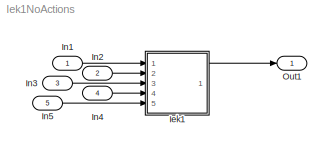
MODEL Iek1NoActions
KIND model
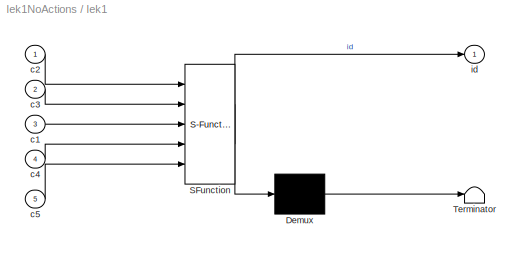
BLOCK [SubSystem] Iek1
  ErrorFcn = Stateflow.Translate.translate
  PermitHierarchicalResolution = ExplicitOnly
  Ports = [5, 1]
  RequestExecContextInheritance = off
  SFBlockType = Chart
  SID = 3
  TreatAsAtomicUnit = on
  Variant = off
BLOCK [Demux] Iek1/ Demux 
  Outputs = 1
  Ports = [1, 1]
  SID = 3::15
BLOCK [S-Function] Iek1/ SFunction 
  EnableBusSupport = on
  FunctionName = sf_sfun
  PortCounts = [5 2]
  Ports = [5, 2]
  SFcnIsStateOwnerBlock = off
  SFunctionDeploymentMode = off
  SID = 3::14
  Tag = Stateflow S-Function Iek1NoActions 1
BLOCK [Terminator] Iek1/ Terminator 
  SID = 3::16
BLOCK [Inport] Iek1/c1
  IconDisplay = Port number
  Port = 3
  SID = 3::21
BLOCK [Inport] Iek1/c2
  IconDisplay = Port number
  SID = 3::17
BLOCK [Inport] Iek1/c3
  IconDisplay = Port number
  Port = 2
  SID = 3::18
BLOCK [Inport] Iek1/c4
  IconDisplay = Port number
  Port = 4
  SID = 3::22
BLOCK [Inport] Iek1/c5
  IconDisplay = Port number
  Port = 5
  SID = 3::23
BLOCK [Outport] Iek1/id
  IconDisplay = Port number
  SID = 3::19
BLOCK [Inport] In1
  IconDisplay = Port number
  OutDataTypeStr = boolean
  SID = 14
BLOCK [Inport] In2
  IconDisplay = Port number
  OutDataTypeStr = boolean
  Port = 2
  SID = 15
BLOCK [Inport] In3
  IconDisplay = Port number
  OutDataTypeStr = boolean
  Port = 3
  SID = 16
BLOCK [Inport] In4
  IconDisplay = Port number
  OutDataTypeStr = boolean
  Port = 4
  SID = 17
BLOCK [Inport] In5
  IconDisplay = Port number
  OutDataTypeStr = boolean
  Port = 5
  SID = 18
BLOCK [Outport] Out1
  IconDisplay = Port number
  SID = 12
LINE Iek1/ Demux :1 -> Iek1/ Terminator :1
LINE Iek1/ SFunction :1 -> Iek1/ Demux :1
LINE Iek1/ SFunction :2 -> Iek1/id:1
LINE Iek1/c1:1 -> Iek1/ SFunction :3
LINE Iek1/c2:1 -> Iek1/ SFunction :1
LINE Iek1/c3:1 -> Iek1/ SFunction :2
LINE Iek1/c4:1 -> Iek1/ SFunction :4
LINE Iek1/c5:1 -> Iek1/ SFunction :5
LINE Iek1:1 -> Out1:1
LINE In1:1 -> Iek1:1
LINE In2:1 -> Iek1:2
LINE In3:1 -> Iek1:3
LINE In4:1 -> Iek1:4
LINE In5:1 -> Iek1:5
CHART Iek1 states=11 transitions=13
  STATE_LABEL 'T1'
  STATE_LABEL 'B\\nen: id=2;'
  STATE_LABEL 'A\\nen: id=1;'
  STATE_LABEL 'T2'
  STATE_LABEL 'C\\nen: id=3;'
  STATE_LABEL 'D\\nen: id=4'
  STATE_LABEL 'T3'
  STATE_LABEL 'a\\nen: id=7;'
  STATE_LABEL 'c\\nen: id=8;'
  STATE_LABEL 'b\\nen: id=6;'
  STATE_LABEL 'd\\nen: id=5;'
